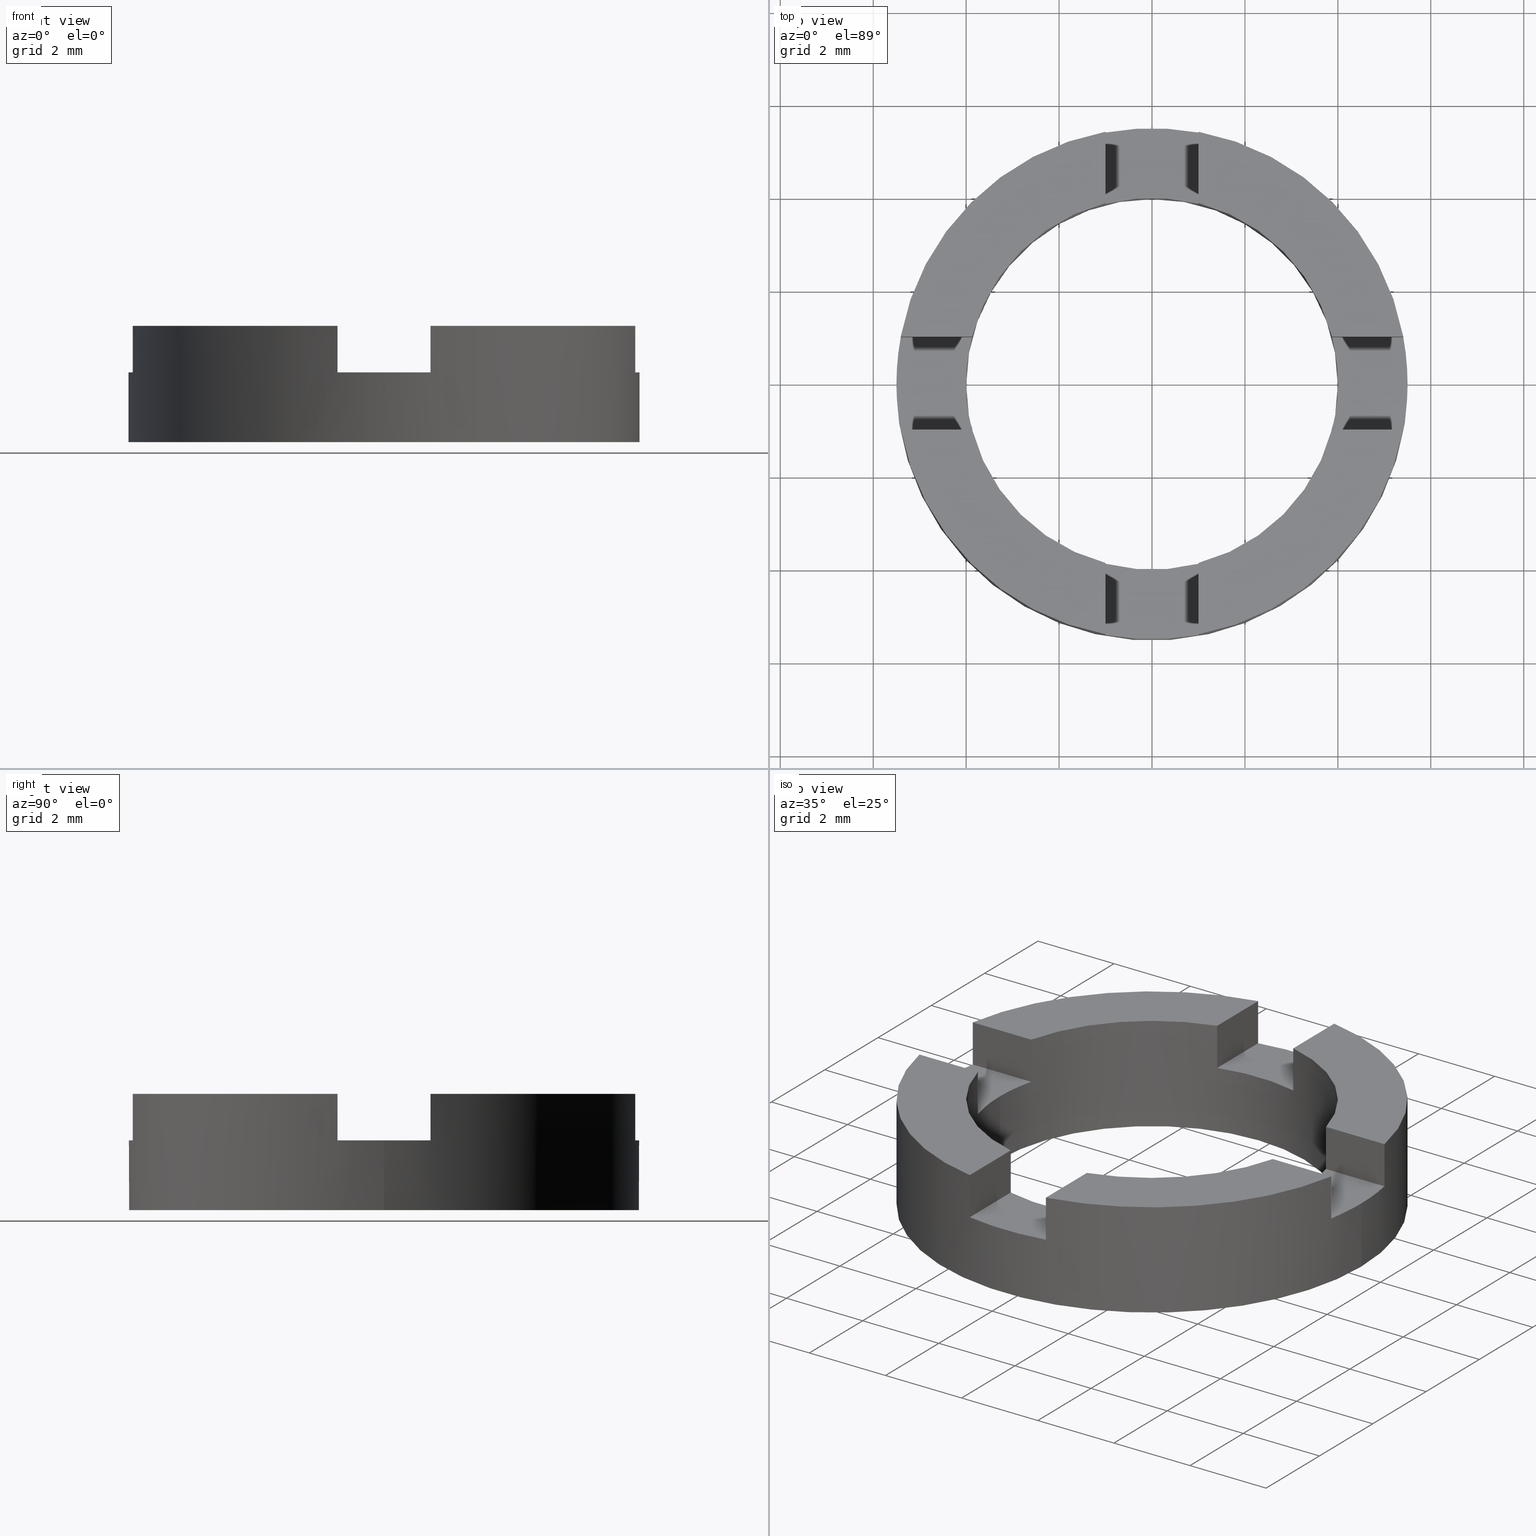
[diagram: canonical four-view strip — front | top / right | iso, engineering-drawing reading convention]
A machine part, canonical four-view strip (front | top / right | iso — engineering-drawing reading convention). The complete STEP part file that produces these views, byte-faithful:
ISO-10303-21;
HEADER;
FILE_DESCRIPTION (( 'STEP AP203' ),
    '1' );
FILE_NAME ('514028.step',
    '2024-12-26T02:30:39',
    ( 'MSI' ),
    ( '' ),
    'SwSTEP 2.0',
    'SolidWorks 2020',
    '' );
FILE_SCHEMA (( 'CONFIG_CONTROL_DESIGN' ));
ENDSEC;

DATA;
#1 = LINE ( 'NONE', #520, #499 ) ;
#2 = ORIENTED_EDGE ( 'NONE', *, *, #85, .F. ) ;
#3 = CARTESIAN_POINT ( 'NONE',  ( -4.000000000000000000, 0.000000000000000000, 2.500000000000000000 ) ) ;
#4 = VECTOR ( 'NONE', #633, 1000.000000000000000 ) ;
#5 = DIRECTION ( 'NONE',  ( 0.000000000000000000, 0.000000000000000000, 1.000000000000000000 ) ) ;
#6 = ORIENTED_EDGE ( 'NONE', *, *, #473, .F. ) ;
#7 = LINE ( 'NONE', #628, #770 ) ;
#8 = ADVANCED_FACE ( 'NONE', ( #301 ), #720, .T. ) ;
#9 = VERTEX_POINT ( 'NONE', #399 ) ;
#10 = VECTOR ( 'NONE', #94, 1000.000000000000000 ) ;
#11 = VERTEX_POINT ( 'NONE', #463 ) ;
#12 = LINE ( 'NONE', #122, #4 ) ;
#13 = EDGE_LOOP ( 'NONE', ( #163, #162 ) ) ;
#14 = ORIENTED_EDGE ( 'NONE', *, *, #474, .T. ) ;
#15 = ORIENTED_EDGE ( 'NONE', *, *, #433, .F. ) ;
#16 = EDGE_CURVE ( 'NONE', #526, #428, #55, .T. ) ;
#17 = ORIENTED_EDGE ( 'NONE', *, *, #614, .T. ) ;
#18 = VECTOR ( 'NONE', #510, 1000.000000000000000 ) ;
#19 = AXIS2_PLACEMENT_3D ( 'NONE', #639, #54, #430 ) ;
#20 = FACE_OUTER_BOUND ( 'NONE', #488, .T. ) ;
#21 = CARTESIAN_POINT ( 'NONE',  ( -1.000000000000000000, -2.365532012695646217E-16, 1.500000000000000000 ) ) ;
#22 = VECTOR ( 'NONE', #309, 1000.000000000000000 ) ;
#23 = LINE ( 'NONE', #536, #556 ) ;
#24 = ORIENTED_EDGE ( 'NONE', *, *, #575, .T. ) ;
#25 = CLOSED_SHELL ( 'NONE', ( #82, #634, #53, #76, #649, #366, #563, #278, #467, #8, #605, #424, #699, #294, #232, #360, #172, #525, #646, #100, #527 ) ) ;
#26 = VERTEX_POINT ( 'NONE', #709 ) ;
#27 = VERTEX_POINT ( 'NONE', #116 ) ;
#28 = ORIENTED_EDGE ( 'NONE', *, *, #610, .F. ) ;
#29 = FACE_OUTER_BOUND ( 'NONE', #161, .T. ) ;
#30 = ORIENTED_EDGE ( 'NONE', *, *, #382, .F. ) ;
#31 = DIRECTION ( 'NONE',  ( 0.000000000000000000, 0.000000000000000000, 1.000000000000000000 ) ) ;
#32 = LINE ( 'NONE', #590, #279 ) ;
#33 = AXIS2_PLACEMENT_3D ( 'NONE', #129, #583, #621 ) ;
#34 = VECTOR ( 'NONE', #396, 1000.000000000000000 ) ;
#35 = VECTOR ( 'NONE', #218, 1000.000000000000000 ) ;
#36 = CARTESIAN_POINT ( 'NONE',  ( 3.272319284228981178E-15, 1.000000000000000888, 1.500000000000000000 ) ) ;
#37 = VECTOR ( 'NONE', #631, 1000.000000000000000 ) ;
#38 = LINE ( 'NONE', #662, #312 ) ;
#39 = CARTESIAN_POINT ( 'NONE',  ( -5.408326913195987018, -0.9999999999999813483, 1.500000000000000000 ) ) ;
#40 = LINE ( 'NONE', #587, #323 ) ;
#41 = CARTESIAN_POINT ( 'NONE',  ( 0.9999999999999991118, 3.872983346207417465, 1.500000000000000000 ) ) ;
#42 = FACE_OUTER_BOUND ( 'NONE', #231, .T. ) ;
#43 = CC_DESIGN_DATE_AND_TIME_ASSIGNMENT ( #475, #608, ( #743 ) ) ;
#44 = EDGE_CURVE ( 'NONE', #50, #234, #285, .T. ) ;
#45 = DIRECTION ( 'NONE',  ( -2.365532012695646217E-16, 1.000000000000000000, 0.000000000000000000 ) ) ;
#46 = VECTOR ( 'NONE', #47, 1000.000000000000000 ) ;
#47 = DIRECTION ( 'NONE',  ( -0.000000000000000000, -0.000000000000000000, -1.000000000000000000 ) ) ;
#48 = EDGE_CURVE ( 'NONE', #531, #481, #549, .T. ) ;
#49 = CARTESIAN_POINT ( 'NONE',  ( 0.000000000000000000, 0.000000000000000000, 0.000000000000000000 ) ) ;
#50 = VERTEX_POINT ( 'NONE', #123 ) ;
#51 = LINE ( 'NONE', #359, #34 ) ;
#52 = LINE ( 'NONE', #423, #283 ) ;
#53 = ADVANCED_FACE ( 'NONE', ( #296 ), #616, .T. ) ;
#54 = DIRECTION ( 'NONE',  ( -0.000000000000000000, 0.000000000000000000, 1.000000000000000000 ) ) ;
#55 = CIRCLE ( 'NONE', #619, 5.500000000000000000 ) ;
#56 = PLANE ( 'NONE',  #33 ) ;
#57 = FACE_OUTER_BOUND ( 'NONE', #567, .T. ) ;
#58 = CYLINDRICAL_SURFACE ( 'NONE', #72, 4.000000000000000000 ) ;
#59 = CARTESIAN_POINT ( 'NONE',  ( 1.000000000000001332, -5.408326913195983465, 1.500000000000000000 ) ) ;
#60 = EDGE_CURVE ( 'NONE', #481, #164, #321, .T. ) ;
#61 = VECTOR ( 'NONE', #665, 1000.000000000000000 ) ;
#62 = EDGE_CURVE ( 'NONE', #688, #230, #570, .T. ) ;
#63 = PLANE ( 'NONE',  #652 ) ;
#64 = CARTESIAN_POINT ( 'NONE',  ( 0.000000000000000000, 0.000000000000000000, 1.500000000000000000 ) ) ;
#65 = MECHANICAL_CONTEXT ( 'NONE', #350, 'mechanical' ) ;
#66 = VECTOR ( 'NONE', #126, 1000.000000000000000 ) ;
#67 = LINE ( 'NONE', #386, #61 ) ;
#68 = CARTESIAN_POINT ( 'NONE',  ( -0.9999999999999991118, -3.872983346207417465, 2.500000000000000000 ) ) ;
#69 = DIRECTION ( 'NONE',  ( 0.000000000000000000, 0.000000000000000000, 1.000000000000000000 ) ) ;
#70 = CARTESIAN_POINT ( 'NONE',  ( -5.500000000000000000, 0.000000000000000000, 2.500000000000000000 ) ) ;
#71 = ORIENTED_EDGE ( 'NONE', *, *, #629, .F. ) ;
#72 = AXIS2_PLACEMENT_3D ( 'NONE', #299, #455, #221 ) ;
#73 = CARTESIAN_POINT ( 'NONE',  ( 5.408326913195980801, -1.000000000000016875, 2.500000000000000000 ) ) ;
#74 = DIRECTION ( 'NONE',  ( 0.000000000000000000, -0.000000000000000000, -1.000000000000000000 ) ) ;
#75 = ORIENTED_EDGE ( 'NONE', *, *, #184, .F. ) ;
#76 = ADVANCED_FACE ( 'NONE', ( #20 ), #317, .T. ) ;
#77 = CARTESIAN_POINT ( 'NONE',  ( 1.000000000000000888, -3.872983346207416577, 2.500000000000000000 ) ) ;
#78 = DIRECTION ( 'NONE',  ( -2.365532012695646217E-16, 1.000000000000000000, 0.000000000000000000 ) ) ;
#79 = DIRECTION ( 'NONE',  ( -0.000000000000000000, -0.000000000000000000, 1.000000000000000000 ) ) ;
#80 = CC_DESIGN_PERSON_AND_ORGANIZATION_ASSIGNMENT ( #223, #275, ( #743 ) ) ;
#81 = AXIS2_PLACEMENT_3D ( 'NONE', #604, #761, #689 ) ;
#82 = ADVANCED_FACE ( 'NONE', ( #574 ), #562, .F. ) ;
#83 = EDGE_CURVE ( 'NONE', #189, #747, #51, .T. ) ;
#84 = AXIS2_PLACEMENT_3D ( 'NONE', #349, #98, #380 ) ;
#85 = EDGE_CURVE ( 'NONE', #273, #174, #290, .T. ) ;
#86 = CARTESIAN_POINT ( 'NONE',  ( 0.000000000000000000, 0.000000000000000000, 0.000000000000000000 ) ) ;
#87 = DIRECTION ( 'NONE',  ( 1.000000000000000000, 0.000000000000000000, 0.000000000000000000 ) ) ;
#88 = DIRECTION ( 'NONE',  ( 0.000000000000000000, 0.000000000000000000, 1.000000000000000000 ) ) ;
#89 = CARTESIAN_POINT ( 'NONE',  ( -1.000000000000000000, -2.365532012695646217E-16, 1.500000000000000000 ) ) ;
#90 = AXIS2_PLACEMENT_3D ( 'NONE', #159, #327, #266 ) ;
#91 = DIRECTION ( 'NONE',  ( 0.000000000000000000, 0.000000000000000000, 1.000000000000000000 ) ) ;
#92 = CARTESIAN_POINT ( 'NONE',  ( 5.500000000000000000, 6.735557395310442023E-16, 2.500000000000000000 ) ) ;
#93 = APPLICATION_PROTOCOL_DEFINITION ( 'international standard', 'config_control_design', 1994, #632 ) ;
#94 = DIRECTION ( 'NONE',  ( -0.000000000000000000, -0.000000000000000000, 1.000000000000000000 ) ) ;
#95 = AXIS2_PLACEMENT_3D ( 'NONE', #49, #679, #394 ) ;
#96 = EDGE_CURVE ( 'NONE', #174, #230, #558, .T. ) ;
#97 = CARTESIAN_POINT ( 'NONE',  ( 0.000000000000000000, 0.000000000000000000, 0.000000000000000000 ) ) ;
#98 = DIRECTION ( 'NONE',  ( -3.272319284228978023E-15, -1.000000000000000000, 0.000000000000000000 ) ) ;
#99 = CARTESIAN_POINT ( 'NONE',  ( -5.408326913195987018, -0.9999999999999813483, 2.500000000000000000 ) ) ;
#100 = ADVANCED_FACE ( 'NONE', ( #57 ), #111, .F. ) ;
#101 = DIRECTION ( 'NONE',  ( 0.000000000000000000, 0.000000000000000000, 1.000000000000000000 ) ) ;
#102 = DIRECTION ( 'NONE',  ( 1.000000000000000000, 0.000000000000000000, -0.000000000000000000 ) ) ;
#103 = APPROVAL_ROLE ( '' ) ;
#104 = DIRECTION ( 'NONE',  ( 1.000000000000000000, 0.000000000000000000, 0.000000000000000000 ) ) ;
#105 = CC_DESIGN_PERSON_AND_ORGANIZATION_ASSIGNMENT ( #216, #209, ( #539 ) ) ;
#106 = EDGE_CURVE ( 'NONE', #170, #667, #545, .T. ) ;
#107 = CARTESIAN_POINT ( 'NONE',  ( 0.000000000000000000, 0.000000000000000000, 2.500000000000000000 ) ) ;
#108 = CARTESIAN_POINT ( 'NONE',  ( 0.000000000000000000, 0.000000000000000000, 1.500000000000000000 ) ) ;
#109 = PLANE ( 'NONE',  #257 ) ;
#110 = CARTESIAN_POINT ( 'NONE',  ( 1.000000000000000888, -3.872983346207416577, 1.500000000000000000 ) ) ;
#111 = PLANE ( 'NONE',  #391 ) ;
#112 = CARTESIAN_POINT ( 'NONE',  ( 0.000000000000000000, 0.000000000000000000, 2.500000000000000000 ) ) ;
#113 = AXIS2_PLACEMENT_3D ( 'NONE', #108, #134, #450 ) ;
#114 = DIRECTION ( 'NONE',  ( 1.000000000000000000, 0.000000000000000000, -0.000000000000000000 ) ) ;
#115 = ORIENTED_EDGE ( 'NONE', *, *, #575, .F. ) ;
#116 = CARTESIAN_POINT ( 'NONE',  ( -5.500000000000000000, 0.000000000000000000, 1.500000000000000000 ) ) ;
#117 = AXIS2_PLACEMENT_3D ( 'NONE', #190, #101, #682 ) ;
#118 = EDGE_CURVE ( 'NONE', #747, #11, #561, .T. ) ;
#119 = EDGE_CURVE ( 'NONE', #690, #307, #40, .T. ) ;
#120 = EDGE_CURVE ( 'NONE', #183, #769, #576, .T. ) ;
#121 = AXIS2_PLACEMENT_3D ( 'NONE', #310, #74, #388 ) ;
#122 = CARTESIAN_POINT ( 'NONE',  ( 1.000000000000000000, 2.365532012695646217E-16, 1.500000000000000000 ) ) ;
#123 = CARTESIAN_POINT ( 'NONE',  ( 5.500000000000000000, 6.735557395310442023E-16, 1.500000000000000000 ) ) ;
#124 = CARTESIAN_POINT ( 'NONE',  ( -0.9999999999999986677, -5.408326913195983465, 1.500000000000000000 ) ) ;
#125 = CARTESIAN_POINT ( 'NONE',  ( 0.000000000000000000, 0.000000000000000000, 1.500000000000000000 ) ) ;
#126 = DIRECTION ( 'NONE',  ( -0.000000000000000000, -0.000000000000000000, 1.000000000000000000 ) ) ;
#127 = VERTEX_POINT ( 'NONE', #201 ) ;
#128 = CARTESIAN_POINT ( 'NONE',  ( 0.000000000000000000, 0.000000000000000000, 2.500000000000000000 ) ) ;
#129 = CARTESIAN_POINT ( 'NONE',  ( -3.272319284228975262E-15, -0.9999999999999991118, 1.500000000000000000 ) ) ;
#130 = APPROVAL_STATUS ( 'not_yet_approved' ) ;
#131 = EDGE_CURVE ( 'NONE', #435, #234, #32, .T. ) ;
#132 = DIRECTION ( 'NONE',  ( -0.000000000000000000, -0.000000000000000000, 1.000000000000000000 ) ) ;
#133 = CARTESIAN_POINT ( 'NONE',  ( -3.272319284228975262E-15, -0.9999999999999991118, 1.500000000000000000 ) ) ;
#134 = DIRECTION ( 'NONE',  ( 0.000000000000000000, -0.000000000000000000, -1.000000000000000000 ) ) ;
#135 = CARTESIAN_POINT ( 'NONE',  ( 3.872983346207413469, -1.000000000000011768, 1.500000000000000000 ) ) ;
#136 = CARTESIAN_POINT ( 'NONE',  ( 0.000000000000000000, 0.000000000000000000, 2.500000000000000000 ) ) ;
#137 = CC_DESIGN_PERSON_AND_ORGANIZATION_ASSIGNMENT ( #721, #151, ( #722 ) ) ;
#138 = CARTESIAN_POINT ( 'NONE',  ( 0.000000000000000000, 0.000000000000000000, 2.500000000000000000 ) ) ;
#139 = CARTESIAN_POINT ( 'NONE',  ( 5.408326913195987018, 0.9999999999999831246, 1.500000000000000000 ) ) ;
#140 = CARTESIAN_POINT ( 'NONE',  ( 5.500000000000000000, 6.735557395310442023E-16, 0.000000000000000000 ) ) ;
#141 = PLANE ( 'NONE',  #169 ) ;
#142 = CARTESIAN_POINT ( 'NONE',  ( -1.000000000000000888, 3.872983346207416577, 1.500000000000000000 ) ) ;
#143 = CARTESIAN_POINT ( 'NONE',  ( 0.000000000000000000, 0.000000000000000000, 1.500000000000000000 ) ) ;
#144 = ORIENTED_EDGE ( 'NONE', *, *, #671, .F. ) ;
#145 = EDGE_CURVE ( 'NONE', #428, #412, #571, .T. ) ;
#146 = ORIENTED_EDGE ( 'NONE', *, *, #85, .T. ) ;
#147 = PLANE ( 'NONE',  #158 ) ;
#148 = EDGE_CURVE ( 'NONE', #435, #165, #23, .T. ) ;
#149 = ORIENTED_EDGE ( 'NONE', *, *, #674, .F. ) ;
#150 = CARTESIAN_POINT ( 'NONE',  ( 1.000000000000000000, 2.365532012695646217E-16, 1.500000000000000000 ) ) ;
#151 = PERSON_AND_ORGANIZATION_ROLE ( 'design_owner' ) ;
#152 = ORIENTED_EDGE ( 'NONE', *, *, #584, .T. ) ;
#153 = ORIENTED_EDGE ( 'NONE', *, *, #555, .T. ) ;
#154 = ORIENTED_EDGE ( 'NONE', *, *, #120, .T. ) ;
#155 = ORIENTED_EDGE ( 'NONE', *, *, #397, .F. ) ;
#156 = ORIENTED_EDGE ( 'NONE', *, *, #243, .F. ) ;
#157 = EDGE_LOOP ( 'NONE', ( #75, #149, #14, #513 ) ) ;
#158 = AXIS2_PLACEMENT_3D ( 'NONE', #609, #453, #606 ) ;
#159 = CARTESIAN_POINT ( 'NONE',  ( 0.000000000000000000, 0.000000000000000000, 1.500000000000000000 ) ) ;
#160 = EDGE_CURVE ( 'NONE', #174, #164, #52, .T. ) ;
#161 = EDGE_LOOP ( 'NONE', ( #612, #492, #484, #507 ) ) ;
#162 = ORIENTED_EDGE ( 'NONE', *, *, #429, .F. ) ;
#163 = ORIENTED_EDGE ( 'NONE', *, *, #651, .F. ) ;
#164 = VERTEX_POINT ( 'NONE', #345 ) ;
#165 = VERTEX_POINT ( 'NONE', #393 ) ;
#166 = ORIENTED_EDGE ( 'NONE', *, *, #731, .F. ) ;
#167 = APPROVAL ( #766, 'δָ��' ) ;
#168 = ORIENTED_EDGE ( 'NONE', *, *, #48, .T. ) ;
#169 = AXIS2_PLACEMENT_3D ( 'NONE', #586, #733, #745 ) ;
#170 = VERTEX_POINT ( 'NONE', #208 ) ;
#171 = ORIENTED_EDGE ( 'NONE', *, *, #637, .T. ) ;
#172 = ADVANCED_FACE ( 'NONE', ( #29 ), #272, .F. ) ;
#173 = ORIENTED_EDGE ( 'NONE', *, *, #629, .T. ) ;
#174 = VERTEX_POINT ( 'NONE', #503 ) ;
#175 = LINE ( 'NONE', #124, #182 ) ;
#176 = ORIENTED_EDGE ( 'NONE', *, *, #16, .F. ) ;
#177 = VECTOR ( 'NONE', #316, 1000.000000000000000 ) ;
#178 = ORIENTED_EDGE ( 'NONE', *, *, #160, .T. ) ;
#179 = CYLINDRICAL_SURFACE ( 'NONE', #504, 5.500000000000000000 ) ;
#180 = EDGE_LOOP ( 'NONE', ( #712, #409, #683, #156, #6, #707, #532, #444, #260, #251, #505, #155 ) ) ;
#181 = CARTESIAN_POINT ( 'NONE',  ( -0.9999999999999991118, -3.872983346207417465, 1.500000000000000000 ) ) ;
#182 = VECTOR ( 'NONE', #348, 1000.000000000000000 ) ;
#183 = VERTEX_POINT ( 'NONE', #384 ) ;
#184 = EDGE_CURVE ( 'NONE', #544, #230, #311, .T. ) ;
#185 = CIRCLE ( 'NONE', #19, 5.500000000000000000 ) ;
#186 = DIRECTION ( 'NONE',  ( -0.000000000000000000, -0.000000000000000000, 1.000000000000000000 ) ) ;
#187 = ORIENTED_EDGE ( 'NONE', *, *, #377, .T. ) ;
#188 = VECTOR ( 'NONE', #338, 1000.000000000000000 ) ;
#189 = VERTEX_POINT ( 'NONE', #39 ) ;
#190 = CARTESIAN_POINT ( 'NONE',  ( 0.000000000000000000, 0.000000000000000000, 2.500000000000000000 ) ) ;
#191 = DIRECTION ( 'NONE',  ( 1.000000000000000000, 0.000000000000000000, 0.000000000000000000 ) ) ;
#192 = DIRECTION ( 'NONE',  ( -0.000000000000000000, -0.000000000000000000, 1.000000000000000000 ) ) ;
#193 = CC_DESIGN_APPROVAL ( #626, ( #364 ) ) ;
#194 = CIRCLE ( 'NONE', #482, 4.000000000000000000 ) ;
#195 = EDGE_CURVE ( 'NONE', #531, #560, #295, .T. ) ;
#196 = DIRECTION ( 'NONE',  ( 0.000000000000000000, 0.000000000000000000, 1.000000000000000000 ) ) ;
#197 = EDGE_CURVE ( 'NONE', #412, #307, #38, .T. ) ;
#198 = LINE ( 'NONE', #395, #436 ) ;
#199 = CIRCLE ( 'NONE', #530, 4.000000000000000000 ) ;
#200 = CARTESIAN_POINT ( 'NONE',  ( 0.000000000000000000, 0.000000000000000000, 2.500000000000000000 ) ) ;
#201 = CARTESIAN_POINT ( 'NONE',  ( -4.000000000000000000, 0.000000000000000000, 1.500000000000000000 ) ) ;
#202 = PERSON_AND_ORGANIZATION_ROLE ( 'design_supplier' ) ;
#203 = VECTOR ( 'NONE', #692, 1000.000000000000000 ) ;
#204 = APPROVAL_PERSON_ORGANIZATION ( #719, #626, #537 ) ;
#205 = CARTESIAN_POINT ( 'NONE',  ( 0.000000000000000000, 0.000000000000000000, 1.500000000000000000 ) ) ;
#206 = LOCAL_TIME ( 10, 30, 39.00000000000000000, #723 ) ;
#207 = FACE_OUTER_BOUND ( 'NONE', #543, .T. ) ;
#208 = CARTESIAN_POINT ( 'NONE',  ( 5.408326913195980801, -1.000000000000016875, 1.500000000000000000 ) ) ;
#209 = PERSON_AND_ORGANIZATION_ROLE ( 'creator' ) ;
#210 = LINE ( 'NONE', #500, #464 ) ;
#211 = AXIS2_PLACEMENT_3D ( 'NONE', #375, #630, #45 ) ;
#212 = EDGE_CURVE ( 'NONE', #526, #407, #306, .T. ) ;
#213 = CIRCLE ( 'NONE', #318, 5.500000000000000000 ) ;
#214 = PLANE ( 'NONE',  #602 ) ;
#215 = DATE_AND_TIME ( #219, #486 ) ;
#216 = PERSON_AND_ORGANIZATION ( #269, #718 ) ;
#217 = DIRECTION ( 'NONE',  ( -1.000000000000000000, 0.000000000000000000, 0.000000000000000000 ) ) ;
#218 = DIRECTION ( 'NONE',  ( -0.000000000000000000, -0.000000000000000000, 1.000000000000000000 ) ) ;
#219 = CALENDAR_DATE ( 2024, 26, 12 ) ;
#220 = DIRECTION ( 'NONE',  ( 1.000000000000000000, 0.000000000000000000, 0.000000000000000000 ) ) ;
#221 = DIRECTION ( 'NONE',  ( -1.000000000000000000, 0.000000000000000000, 0.000000000000000000 ) ) ;
#222 = CARTESIAN_POINT ( 'NONE',  ( 4.000000000000000000, 4.898587196589412829E-16, 0.000000000000000000 ) ) ;
#223 = PERSON_AND_ORGANIZATION ( #269, #718 ) ;
#224 = CARTESIAN_POINT ( 'NONE',  ( -1.000000000000001332, 5.408326913195983465, 1.500000000000000000 ) ) ;
#225 = CARTESIAN_POINT ( 'NONE',  ( -5.408326913195980801, 1.000000000000018652, 1.500000000000000000 ) ) ;
#226 = DIRECTION ( 'NONE',  ( 1.000000000000000000, 2.365532012695646217E-16, 0.000000000000000000 ) ) ;
#227 = APPROVAL_STATUS ( 'not_yet_approved' ) ;
#228 = DATE_AND_TIME ( #726, #206 ) ;
#229 = DATE_AND_TIME ( #750, #242 ) ;
#230 = VERTEX_POINT ( 'NONE', #756 ) ;
#231 = EDGE_LOOP ( 'NONE', ( #480, #298, #154, #173, #17, #670 ) ) ;
#232 = ADVANCED_FACE ( 'NONE', ( #42 ), #740, .T. ) ;
#233 = ORIENTED_EDGE ( 'NONE', *, *, #119, .F. ) ;
#234 = VERTEX_POINT ( 'NONE', #139 ) ;
#235 = SHAPE_DEFINITION_REPRESENTATION ( #457, #597 ) ;
#236 = ORIENTED_EDGE ( 'NONE', *, *, #356, .F. ) ;
#237 = ORIENTED_EDGE ( 'NONE', *, *, #540, .T. ) ;
#238 = ORIENTED_EDGE ( 'NONE', *, *, #212, .F. ) ;
#239 = ORIENTED_EDGE ( 'NONE', *, *, #332, .T. ) ;
#240 = LOCAL_TIME ( 10, 30, 39.00000000000000000, #477 ) ;
#241 = ORIENTED_EDGE ( 'NONE', *, *, #96, .F. ) ;
#242 = LOCAL_TIME ( 10, 30, 39.00000000000000000, #736 ) ;
#243 = EDGE_CURVE ( 'NONE', #27, #780, #568, .T. ) ;
#244 = EDGE_LOOP ( 'NONE', ( #552, #233, #764, #660 ) ) ;
#245 = APPROVAL_PERSON_ORGANIZATION ( #748, #167, #103 ) ;
#246 = ORIENTED_EDGE ( 'NONE', *, *, #131, .T. ) ;
#247 = CIRCLE ( 'NONE', #466, 4.000000000000000000 ) ;
#248 = ORIENTED_EDGE ( 'NONE', *, *, #331, .F. ) ;
#249 = CIRCLE ( 'NONE', #365, 5.500000000000000000 ) ;
#250 = VERTEX_POINT ( 'NONE', #640 ) ;
#251 = ORIENTED_EDGE ( 'NONE', *, *, #195, .T. ) ;
#252 = CIRCLE ( 'NONE', #565, 5.500000000000000000 ) ;
#253 = ORIENTED_EDGE ( 'NONE', *, *, #687, .T. ) ;
#254 = CIRCLE ( 'NONE', #335, 5.500000000000000000 ) ;
#255 = ORIENTED_EDGE ( 'NONE', *, *, #416, .F. ) ;
#256 = CIRCLE ( 'NONE', #725, 5.500000000000000000 ) ;
#257 = AXIS2_PLACEMENT_3D ( 'NONE', #143, #313, #357 ) ;
#258 = ORIENTED_EDGE ( 'NONE', *, *, #483, .T. ) ;
#259 = FACE_OUTER_BOUND ( 'NONE', #319, .T. ) ;
#260 = ORIENTED_EDGE ( 'NONE', *, *, #48, .F. ) ;
#261 = VECTOR ( 'NONE', #658, 1000.000000000000000 ) ;
#262 = EDGE_LOOP ( 'NONE', ( #241, #178, #495, #691 ) ) ;
#263 = FACE_OUTER_BOUND ( 'NONE', #157, .T. ) ;
#264 = CARTESIAN_POINT ( 'NONE',  ( -3.872983346207420574, -0.9999999999999865663, 1.500000000000000000 ) ) ;
#265 = ORIENTED_EDGE ( 'NONE', *, *, #650, .T. ) ;
#266 = DIRECTION ( 'NONE',  ( 1.000000000000000000, 0.000000000000000000, 0.000000000000000000 ) ) ;
#267 = ORIENTED_EDGE ( 'NONE', *, *, #627, .T. ) ;
#268 = ORIENTED_EDGE ( 'NONE', *, *, #473, .T. ) ;
#269 = PERSON ( 'δָ��', 'δָ��', 'δָ��', ('δָ��'), ('δָ��'), ('δָ��') ) ;
#270 = DIRECTION ( 'NONE',  ( 1.000000000000000000, 0.000000000000000000, 0.000000000000000000 ) ) ;
#271 = AXIS2_PLACEMENT_3D ( 'NONE', #611, #5, #607 ) ;
#272 = PLANE ( 'NONE',  #84 ) ;
#273 = VERTEX_POINT ( 'NONE', #142 ) ;
#274 = CARTESIAN_POINT ( 'NONE',  ( -3.272319284228975262E-15, -0.9999999999999991118, 2.500000000000000000 ) ) ;
#275 = PERSON_AND_ORGANIZATION_ROLE ( 'classification_officer' ) ;
#276 = EDGE_LOOP ( 'NONE', ( #115, #752, #253, #168 ) ) ;
#277 = CC_DESIGN_DATE_AND_TIME_ASSIGNMENT ( #229, #542, ( #364 ) ) ;
#278 = ADVANCED_FACE ( 'NONE', ( #314 ), #58, .F. ) ;
#279 = VECTOR ( 'NONE', #529, 1000.000000000000000 ) ;
#280 = ORIENTED_EDGE ( 'NONE', *, *, #671, .T. ) ;
#281 = EDGE_CURVE ( 'NONE', #50, #519, #580, .T. ) ;
#282 = AXIS2_PLACEMENT_3D ( 'NONE', #125, #656, #783 ) ;
#283 = VECTOR ( 'NONE', #515, 1000.000000000000000 ) ;
#284 = ORIENTED_EDGE ( 'NONE', *, *, #555, .F. ) ;
#285 = CIRCLE ( 'NONE', #90, 5.500000000000000000 ) ;
#286 = ORIENTED_EDGE ( 'NONE', *, *, #336, .F. ) ;
#287 = DIRECTION ( 'NONE',  ( -0.000000000000000000, -0.000000000000000000, -1.000000000000000000 ) ) ;
#288 = DIRECTION ( 'NONE',  ( -0.000000000000000000, -0.000000000000000000, 1.000000000000000000 ) ) ;
#289 = DIRECTION ( 'NONE',  ( 0.000000000000000000, 0.000000000000000000, 1.000000000000000000 ) ) ;
#290 = LINE ( 'NONE', #462, #551 ) ;
#291 = ORIENTED_EDGE ( 'NONE', *, *, #397, .T. ) ;
#292 = VECTOR ( 'NONE', #635, 1000.000000000000000 ) ;
#293 = DIRECTION ( 'NONE',  ( 0.000000000000000000, -0.000000000000000000, -1.000000000000000000 ) ) ;
#294 = ADVANCED_FACE ( 'NONE', ( #324 ), #56, .F. ) ;
#295 = LINE ( 'NONE', #678, #37 ) ;
#296 = FACE_OUTER_BOUND ( 'NONE', #262, .T. ) ;
#297 = CARTESIAN_POINT ( 'NONE',  ( 0.9999999999999986677, 5.408326913195983465, 1.500000000000000000 ) ) ;
#298 = ORIENTED_EDGE ( 'NONE', *, *, #356, .T. ) ;
#299 = CARTESIAN_POINT ( 'NONE',  ( 0.000000000000000000, 0.000000000000000000, 2.500000000000000000 ) ) ;
#300 = DIRECTION ( 'NONE',  ( 0.000000000000000000, 0.000000000000000000, 1.000000000000000000 ) ) ;
#301 = FACE_OUTER_BOUND ( 'NONE', #522, .T. ) ;
#302 = AXIS2_PLACEMENT_3D ( 'NONE', #703, #548, #776 ) ;
#303 = EDGE_CURVE ( 'NONE', #273, #569, #581, .T. ) ;
#304 = EDGE_LOOP ( 'NONE', ( #413, #268, #493, #152, #330, #777 ) ) ;
#305 = CARTESIAN_POINT ( 'NONE',  ( -4.000000000000000000, 0.000000000000000000, 0.000000000000000000 ) ) ;
#306 = LINE ( 'NONE', #89, #564 ) ;
#307 = VERTEX_POINT ( 'NONE', #77 ) ;
#308 = CARTESIAN_POINT ( 'NONE',  ( 0.9999999999999991118, 3.872983346207417465, 2.500000000000000000 ) ) ;
#309 = DIRECTION ( 'NONE',  ( 1.000000000000000000, -3.272319284228978023E-15, 0.000000000000000000 ) ) ;
#310 = CARTESIAN_POINT ( 'NONE',  ( 0.000000000000000000, 0.000000000000000000, 1.500000000000000000 ) ) ;
#311 = LINE ( 'NONE', #598, #292 ) ;
#312 = VECTOR ( 'NONE', #352, 1000.000000000000000 ) ;
#313 = DIRECTION ( 'NONE',  ( -0.000000000000000000, 0.000000000000000000, 1.000000000000000000 ) ) ;
#314 = FACE_OUTER_BOUND ( 'NONE', #341, .T. ) ;
#315 = EDGE_LOOP ( 'NONE', ( #267, #153 ) ) ;
#316 = DIRECTION ( 'NONE',  ( -0.000000000000000000, -0.000000000000000000, 1.000000000000000000 ) ) ;
#317 = PLANE ( 'NONE',  #400 ) ;
#318 = AXIS2_PLACEMENT_3D ( 'NONE', #421, #661, #344 ) ;
#319 = EDGE_LOOP ( 'NONE', ( #238, #760, #534, #258 ) ) ;
#320 = EDGE_LOOP ( 'NONE', ( #422, #479, #71, #401 ) ) ;
#321 = LINE ( 'NONE', #370, #566 ) ;
#322 = DIRECTION ( 'NONE',  ( 1.000000000000000000, 2.365532012695646217E-16, 0.000000000000000000 ) ) ;
#323 = VECTOR ( 'NONE', #192, 1000.000000000000000 ) ;
#324 = FACE_OUTER_BOUND ( 'NONE', #320, .T. ) ;
#325 = LINE ( 'NONE', #368, #328 ) ;
#326 = CIRCLE ( 'NONE', #362, 4.000000000000000000 ) ;
#327 = DIRECTION ( 'NONE',  ( -0.000000000000000000, 0.000000000000000000, 1.000000000000000000 ) ) ;
#328 = VECTOR ( 'NONE', #496, 1000.000000000000000 ) ;
#329 = AXIS2_PLACEMENT_3D ( 'NONE', #64, #625, #601 ) ;
#330 = ORIENTED_EDGE ( 'NONE', *, *, #731, .T. ) ;
#331 = EDGE_CURVE ( 'NONE', #407, #476, #578, .T. ) ;
#332 = EDGE_CURVE ( 'NONE', #165, #250, #67, .T. ) ;
#333 = CARTESIAN_POINT ( 'NONE',  ( 0.000000000000000000, 0.000000000000000000, 1.500000000000000000 ) ) ;
#334 = CARTESIAN_POINT ( 'NONE',  ( 0.000000000000000000, 0.000000000000000000, 1.500000000000000000 ) ) ;
#335 = AXIS2_PLACEMENT_3D ( 'NONE', #136, #638, #87 ) ;
#336 = EDGE_CURVE ( 'NONE', #183, #773, #325, .T. ) ;
#337 = CARTESIAN_POINT ( 'NONE',  ( 0.000000000000000000, 0.000000000000000000, 0.000000000000000000 ) ) ;
#338 = DIRECTION ( 'NONE',  ( -2.365532012695646217E-16, 1.000000000000000000, 0.000000000000000000 ) ) ;
#339 = CARTESIAN_POINT ( 'NONE',  ( 5.408326913195980801, -1.000000000000016875, 1.500000000000000000 ) ) ;
#340 = DIRECTION ( 'NONE',  ( -3.272319284228978023E-15, -1.000000000000000000, 0.000000000000000000 ) ) ;
#341 = EDGE_LOOP ( 'NONE', ( #286, #236, #547, #417, #30, #758, #146, #686, #404, #15, #280, #284 ) ) ;
#342 = AXIS2_PLACEMENT_3D ( 'NONE', #36, #340, #751 ) ;
#343 = CARTESIAN_POINT ( 'NONE',  ( -3.872983346207413025, 1.000000000000013545, 1.500000000000000000 ) ) ;
#344 = DIRECTION ( 'NONE',  ( 1.000000000000000000, 0.000000000000000000, 0.000000000000000000 ) ) ;
#345 = CARTESIAN_POINT ( 'NONE',  ( -1.000000000000001332, 5.408326913195983465, 2.500000000000000000 ) ) ;
#346 = APPLICATION_PROTOCOL_DEFINITION ( 'international standard', 'config_control_design', 1994, #350 ) ;
#347 = PLANE ( 'NONE',  #615 ) ;
#348 = DIRECTION ( 'NONE',  ( -0.000000000000000000, -0.000000000000000000, 1.000000000000000000 ) ) ;
#349 = CARTESIAN_POINT ( 'NONE',  ( -3.272319284228975262E-15, -0.9999999999999991118, 1.500000000000000000 ) ) ;
#350 = APPLICATION_CONTEXT ( 'configuration controlled 3d designs of mechanical parts and assemblies' ) ;
#351 = DIRECTION ( 'NONE',  ( 1.000000000000000000, -3.272319284228978023E-15, 0.000000000000000000 ) ) ;
#352 = DIRECTION ( 'NONE',  ( -2.365532012695646217E-16, 1.000000000000000000, 0.000000000000000000 ) ) ;
#353 = DIRECTION ( 'NONE',  ( 1.000000000000000000, 0.000000000000000000, 0.000000000000000000 ) ) ;
#354 =( NAMED_UNIT ( * ) PLANE_ANGLE_UNIT ( ) SI_UNIT ( $, .RADIAN. ) );
#355 = CC_DESIGN_APPROVAL ( #389, ( #539 ) ) ;
#356 = EDGE_CURVE ( 'NONE', #435, #183, #326, .T. ) ;
#357 = DIRECTION ( 'NONE',  ( 1.000000000000000000, 0.000000000000000000, 0.000000000000000000 ) ) ;
#358 = CARTESIAN_POINT ( 'NONE',  ( -3.872983346207420574, -0.9999999999999865663, 1.500000000000000000 ) ) ;
#359 = CARTESIAN_POINT ( 'NONE',  ( -5.408326913195987018, -0.9999999999999813483, 1.500000000000000000 ) ) ;
#360 = ADVANCED_FACE ( 'NONE', ( #263 ), #445, .T. ) ;
#361 = DIRECTION ( 'NONE',  ( -2.365532012695646217E-16, 1.000000000000000000, 0.000000000000000000 ) ) ;
#362 = AXIS2_PLACEMENT_3D ( 'NONE', #730, #654, #595 ) ;
#363 = EDGE_CURVE ( 'NONE', #9, #667, #509, .T. ) ;
#364 = PRODUCT_DEFINITION ( 'δ֪', '', #539, #478 ) ;
#365 = AXIS2_PLACEMENT_3D ( 'NONE', #138, #379, #620 ) ;
#366 = ADVANCED_FACE ( 'NONE', ( #528 ), #372, .T. ) ;
#367 = AXIS2_PLACEMENT_3D ( 'NONE', #21, #322, #361 ) ;
#368 = CARTESIAN_POINT ( 'NONE',  ( 4.000000000000000000, 4.898587196589412829E-16, 2.500000000000000000 ) ) ;
#369 = DIRECTION ( 'NONE',  ( -0.000000000000000000, 0.000000000000000000, 1.000000000000000000 ) ) ;
#370 = CARTESIAN_POINT ( 'NONE',  ( -1.000000000000001332, 5.408326913195983465, 1.500000000000000000 ) ) ;
#371 = ORIENTED_EDGE ( 'NONE', *, *, #331, .T. ) ;
#372 = PLANE ( 'NONE',  #117 ) ;
#373 =( GEOMETRIC_REPRESENTATION_CONTEXT ( 3 ) GLOBAL_UNCERTAINTY_ASSIGNED_CONTEXT ( ( #779 ) ) GLOBAL_UNIT_ASSIGNED_CONTEXT ( ( #516, #354, #591 ) ) REPRESENTATION_CONTEXT ( 'NONE', 'WORKASPACE' ) );
#374 = EDGE_CURVE ( 'NONE', #428, #690, #12, .T. ) ;
#375 = CARTESIAN_POINT ( 'NONE',  ( -1.000000000000000000, -2.365532012695646217E-16, 1.500000000000000000 ) ) ;
#376 = CARTESIAN_POINT ( 'NONE',  ( 1.000000000000001332, -5.408326913195983465, 1.500000000000000000 ) ) ;
#377 = EDGE_CURVE ( 'NONE', #684, #11, #523, .T. ) ;
#378 = DIRECTION ( 'NONE',  ( -0.000000000000000000, 0.000000000000000000, 1.000000000000000000 ) ) ;
#379 = DIRECTION ( 'NONE',  ( 0.000000000000000000, 0.000000000000000000, 1.000000000000000000 ) ) ;
#380 = DIRECTION ( 'NONE',  ( 1.000000000000000000, -3.272319284228978023E-15, 0.000000000000000000 ) ) ;
#381 = CARTESIAN_POINT ( 'NONE',  ( -0.9999999999999991118, -3.872983346207417465, 1.500000000000000000 ) ) ;
#382 = EDGE_CURVE ( 'NONE', #569, #559, #778, .T. ) ;
#383 = DIRECTION ( 'NONE',  ( -0.000000000000000000, 0.000000000000000000, 1.000000000000000000 ) ) ;
#384 = CARTESIAN_POINT ( 'NONE',  ( 4.000000000000000000, 4.898587196589412829E-16, 1.500000000000000000 ) ) ;
#385 = SECURITY_CLASSIFICATION_LEVEL ( 'unclassified' ) ;
#386 = CARTESIAN_POINT ( 'NONE',  ( 3.272319284228981178E-15, 1.000000000000000888, 2.500000000000000000 ) ) ;
#387 = CARTESIAN_POINT ( 'NONE',  ( 0.000000000000000000, 0.000000000000000000, 0.000000000000000000 ) ) ;
#388 = DIRECTION ( 'NONE',  ( 1.000000000000000000, 5.329070518200751394E-15, 0.000000000000000000 ) ) ;
#389 = APPROVAL ( #130, 'δָ��' ) ;
#390 = CARTESIAN_POINT ( 'NONE',  ( 0.000000000000000000, 0.000000000000000000, 1.500000000000000000 ) ) ;
#391 = AXIS2_PLACEMENT_3D ( 'NONE', #150, #226, #432 ) ;
#392 = DIRECTION ( 'NONE',  ( 1.000000000000000000, -3.272319284228978023E-15, 0.000000000000000000 ) ) ;
#393 = CARTESIAN_POINT ( 'NONE',  ( 3.872983346207420130, 0.9999999999999883427, 2.500000000000000000 ) ) ;
#394 = DIRECTION ( 'NONE',  ( 1.000000000000000000, 0.000000000000000000, 0.000000000000000000 ) ) ;
#395 = CARTESIAN_POINT ( 'NONE',  ( 1.000000000000000000, 2.365532012695646217E-16, 1.500000000000000000 ) ) ;
#396 = DIRECTION ( 'NONE',  ( -0.000000000000000000, -0.000000000000000000, 1.000000000000000000 ) ) ;
#397 = EDGE_CURVE ( 'NONE', #234, #250, #1, .T. ) ;
#398 = AXIS2_PLACEMENT_3D ( 'NONE', #333, #293, #411 ) ;
#399 = CARTESIAN_POINT ( 'NONE',  ( 3.872983346207413469, -1.000000000000011768, 2.500000000000000000 ) ) ;
#400 = AXIS2_PLACEMENT_3D ( 'NONE', #693, #643, #114 ) ;
#401 = ORIENTED_EDGE ( 'NONE', *, *, #610, .T. ) ;
#402 = ORIENTED_EDGE ( 'NONE', *, *, #724, .T. ) ;
#403 = ORIENTED_EDGE ( 'NONE', *, *, #573, .F. ) ;
#404 = ORIENTED_EDGE ( 'NONE', *, *, #62, .F. ) ;
#405 = ORIENTED_EDGE ( 'NONE', *, *, #160, .F. ) ;
#406 = AXIS2_PLACEMENT_3D ( 'NONE', #728, #31, #490 ) ;
#407 = VERTEX_POINT ( 'NONE', #381 ) ;
#408 = ORIENTED_EDGE ( 'NONE', *, *, #382, .T. ) ;
#409 = ORIENTED_EDGE ( 'NONE', *, *, #281, .T. ) ;
#410 = ORIENTED_EDGE ( 'NONE', *, *, #627, .F. ) ;
#411 = DIRECTION ( 'NONE',  ( 1.000000000000000000, 0.000000000000000000, 0.000000000000000000 ) ) ;
#412 = VERTEX_POINT ( 'NONE', #418 ) ;
#413 = ORIENTED_EDGE ( 'NONE', *, *, #474, .F. ) ;
#414 = CC_DESIGN_PERSON_AND_ORGANIZATION_ASSIGNMENT ( #469, #603, ( #364 ) ) ;
#415 = ORIENTED_EDGE ( 'NONE', *, *, #212, .T. ) ;
#416 = EDGE_CURVE ( 'NONE', #412, #667, #256, .T. ) ;
#417 = ORIENTED_EDGE ( 'NONE', *, *, #573, .T. ) ;
#418 = CARTESIAN_POINT ( 'NONE',  ( 1.000000000000001332, -5.408326913195983465, 2.500000000000000000 ) ) ;
#419 = ORIENTED_EDGE ( 'NONE', *, *, #724, .F. ) ;
#420 = ORIENTED_EDGE ( 'NONE', *, *, #732, .T. ) ;
#421 = CARTESIAN_POINT ( 'NONE',  ( 0.000000000000000000, 0.000000000000000000, 0.000000000000000000 ) ) ;
#422 = ORIENTED_EDGE ( 'NONE', *, *, #363, .T. ) ;
#423 = CARTESIAN_POINT ( 'NONE',  ( -1.000000000000000000, -2.365532012695646217E-16, 2.500000000000000000 ) ) ;
#424 = ADVANCED_FACE ( 'NONE', ( #259 ), #214, .T. ) ;
#425 = ORIENTED_EDGE ( 'NONE', *, *, #118, .F. ) ;
#426 = CARTESIAN_POINT ( 'NONE',  ( 3.872983346207420130, 0.9999999999999883427, 1.500000000000000000 ) ) ;
#427 = ORIENTED_EDGE ( 'NONE', *, *, #195, .F. ) ;
#428 = VERTEX_POINT ( 'NONE', #59 ) ;
#429 = EDGE_CURVE ( 'NONE', #519, #780, #521, .T. ) ;
#430 = DIRECTION ( 'NONE',  ( 1.000000000000000000, 0.000000000000000000, 0.000000000000000000 ) ) ;
#431 = ORIENTED_EDGE ( 'NONE', *, *, #119, .T. ) ;
#432 = DIRECTION ( 'NONE',  ( -2.365532012695646217E-16, 1.000000000000000000, 0.000000000000000000 ) ) ;
#433 = EDGE_CURVE ( 'NONE', #127, #688, #512, .T. ) ;
#434 = FACE_OUTER_BOUND ( 'NONE', #442, .T. ) ;
#435 = VERTEX_POINT ( 'NONE', #426 ) ;
#436 = VECTOR ( 'NONE', #774, 1000.000000000000000 ) ;
#437 = ORIENTED_EDGE ( 'NONE', *, *, #659, .T. ) ;
#438 = VECTOR ( 'NONE', #600, 1000.000000000000000 ) ;
#439 = ORIENTED_EDGE ( 'NONE', *, *, #650, .F. ) ;
#440 = PLANE ( 'NONE',  #211 ) ;
#441 = VECTOR ( 'NONE', #392, 1000.000000000000000 ) ;
#442 = EDGE_LOOP ( 'NONE', ( #405, #2, #24, #695 ) ) ;
#443 = LINE ( 'NONE', #133, #441 ) ;
#444 = ORIENTED_EDGE ( 'NONE', *, *, #60, .F. ) ;
#445 = PLANE ( 'NONE',  #342 ) ;
#446 = ORIENTED_EDGE ( 'NONE', *, *, #483, .F. ) ;
#447 = LINE ( 'NONE', #225, #177 ) ;
#448 = EDGE_CURVE ( 'NONE', #164, #544, #254, .T. ) ;
#449 = CARTESIAN_POINT ( 'NONE',  ( -5.408326913195980801, 1.000000000000018652, 1.500000000000000000 ) ) ;
#450 = DIRECTION ( 'NONE',  ( 1.000000000000000000, 0.000000000000000000, 0.000000000000000000 ) ) ;
#451 = PLANE ( 'NONE',  #81 ) ;
#452 = LINE ( 'NONE', #739, #188 ) ;
#453 = DIRECTION ( 'NONE',  ( -3.272319284228978023E-15, -1.000000000000000000, 0.000000000000000000 ) ) ;
#454 = FACE_OUTER_BOUND ( 'NONE', #244, .T. ) ;
#455 = DIRECTION ( 'NONE',  ( -0.000000000000000000, -0.000000000000000000, -1.000000000000000000 ) ) ;
#456 = CARTESIAN_POINT ( 'NONE',  ( 0.000000000000000000, 0.000000000000000000, 2.500000000000000000 ) ) ;
#457 = PRODUCT_DEFINITION_SHAPE ( 'NONE', 'NONE',  #364 ) ;
#458 = CIRCLE ( 'NONE', #759, 4.000000000000000000 ) ;
#459 = AXIS2_PLACEMENT_3D ( 'NONE', #97, #91, #353 ) ;
#460 = LINE ( 'NONE', #702, #711 ) ;
#461 = DIRECTION ( 'NONE',  ( -0.000000000000000000, -0.000000000000000000, -1.000000000000000000 ) ) ;
#462 = CARTESIAN_POINT ( 'NONE',  ( -1.000000000000000888, 3.872983346207416577, 1.500000000000000000 ) ) ;
#463 = CARTESIAN_POINT ( 'NONE',  ( -3.872983346207420574, -0.9999999999999865663, 2.500000000000000000 ) ) ;
#464 = VECTOR ( 'NONE', #351, 1000.000000000000000 ) ;
#465 = VECTOR ( 'NONE', #461, 1000.000000000000000 ) ;
#466 = AXIS2_PLACEMENT_3D ( 'NONE', #390, #538, #104 ) ;
#467 = ADVANCED_FACE ( 'NONE', ( #514, #518 ), #347, .F. ) ;
#468 = APPROVAL_DATE_TIME ( #228, #626 ) ;
#469 = PERSON_AND_ORGANIZATION ( #269, #718 ) ;
#470 = CALENDAR_DATE ( 2024, 26, 12 ) ;
#471 = COORDINATED_UNIVERSAL_TIME_OFFSET ( 8, 0, .AHEAD. ) ;
#472 = DATE_AND_TIME ( #489, #240 ) ;
#473 = EDGE_CURVE ( 'NONE', #594, #27, #252, .T. ) ;
#474 = EDGE_CURVE ( 'NONE', #594, #688, #7, .T. ) ;
#475 = DATE_AND_TIME ( #470, #738 ) ;
#476 = VERTEX_POINT ( 'NONE', #68 ) ;
#477 = COORDINATED_UNIVERSAL_TIME_OFFSET ( 8, 0, .AHEAD. ) ;
#478 = DESIGN_CONTEXT ( 'detailed design', #632, 'design' ) ;
#479 = ORIENTED_EDGE ( 'NONE', *, *, #106, .F. ) ;
#480 = ORIENTED_EDGE ( 'NONE', *, *, #131, .F. ) ;
#481 = VERTEX_POINT ( 'NONE', #224 ) ;
#482 = AXIS2_PLACEMENT_3D ( 'NONE', #200, #88, #191 ) ;
#483 = EDGE_CURVE ( 'NONE', #690, #407, #247, .T. ) ;
#484 = ORIENTED_EDGE ( 'NONE', *, *, #584, .F. ) ;
#485 = DIRECTION ( 'NONE',  ( 1.000000000000000000, 0.000000000000000000, -0.000000000000000000 ) ) ;
#486 = LOCAL_TIME ( 10, 30, 39.00000000000000000, #734 ) ;
#487 = DIRECTION ( 'NONE',  ( 1.000000000000000000, 0.000000000000000000, 0.000000000000000000 ) ) ;
#488 = EDGE_LOOP ( 'NONE', ( #675, #403, #239, #237 ) ) ;
#489 = CALENDAR_DATE ( 2024, 26, 12 ) ;
#490 = DIRECTION ( 'NONE',  ( 1.000000000000000000, 0.000000000000000000, -0.000000000000000000 ) ) ;
#491 = DIRECTION ( 'NONE',  ( -1.000000000000000000, 0.000000000000000000, 0.000000000000000000 ) ) ;
#492 = ORIENTED_EDGE ( 'NONE', *, *, #377, .F. ) ;
#493 = ORIENTED_EDGE ( 'NONE', *, *, #593, .T. ) ;
#494 = PERSON_AND_ORGANIZATION ( #269, #718 ) ;
#495 = ORIENTED_EDGE ( 'NONE', *, *, #448, .T. ) ;
#496 = DIRECTION ( 'NONE',  ( -0.000000000000000000, -0.000000000000000000, -1.000000000000000000 ) ) ;
#497 = PERSON_AND_ORGANIZATION ( #269, #718 ) ;
#498 = ORIENTED_EDGE ( 'NONE', *, *, #732, .F. ) ;
#499 = VECTOR ( 'NONE', #132, 1000.000000000000000 ) ;
#500 = CARTESIAN_POINT ( 'NONE',  ( -3.272319284228975262E-15, -0.9999999999999991118, 1.500000000000000000 ) ) ;
#501 = ORIENTED_EDGE ( 'NONE', *, *, #651, .T. ) ;
#502 = FACE_OUTER_BOUND ( 'NONE', #304, .T. ) ;
#503 = CARTESIAN_POINT ( 'NONE',  ( -1.000000000000000888, 3.872983346207416577, 2.500000000000000000 ) ) ;
#504 = AXIS2_PLACEMENT_3D ( 'NONE', #655, #668, #217 ) ;
#505 = ORIENTED_EDGE ( 'NONE', *, *, #540, .F. ) ;
#506 = CIRCLE ( 'NONE', #644, 4.000000000000000000 ) ;
#507 = ORIENTED_EDGE ( 'NONE', *, *, #83, .T. ) ;
#508 = DIRECTION ( 'NONE',  ( 0.000000000000000000, 0.000000000000000000, 1.000000000000000000 ) ) ;
#509 = LINE ( 'NONE', #744, #775 ) ;
#510 = DIRECTION ( 'NONE',  ( -0.000000000000000000, -0.000000000000000000, 1.000000000000000000 ) ) ;
#511 = VERTEX_POINT ( 'NONE', #305 ) ;
#512 = CIRCLE ( 'NONE', #398, 4.000000000000000000 ) ;
#513 = ORIENTED_EDGE ( 'NONE', *, *, #62, .T. ) ;
#514 = FACE_OUTER_BOUND ( 'NONE', #13, .T. ) ;
#515 = DIRECTION ( 'NONE',  ( -2.365532012695646217E-16, 1.000000000000000000, 0.000000000000000000 ) ) ;
#516 =( LENGTH_UNIT ( ) NAMED_UNIT ( * ) SI_UNIT ( .MILLI., .METRE. ) );
#517 = ORIENTED_EDGE ( 'NONE', *, *, #336, .T. ) ;
#518 = FACE_BOUND ( 'NONE', #315, .T. ) ;
#519 = VERTEX_POINT ( 'NONE', #140 ) ;
#520 = CARTESIAN_POINT ( 'NONE',  ( 5.408326913195987018, 0.9999999999999831246, 1.500000000000000000 ) ) ;
#521 = CIRCLE ( 'NONE', #716, 5.500000000000000000 ) ;
#522 = EDGE_LOOP ( 'NONE', ( #763, #550, #415, #371 ) ) ;
#523 = LINE ( 'NONE', #264, #261 ) ;
#524 = CARTESIAN_POINT ( 'NONE',  ( 0.000000000000000000, 0.000000000000000000, 1.500000000000000000 ) ) ;
#525 = ADVANCED_FACE ( 'NONE', ( #502 ), #451, .T. ) ;
#526 = VERTEX_POINT ( 'NONE', #642 ) ;
#527 = ADVANCED_FACE ( 'NONE', ( #772 ), #109, .T. ) ;
#528 = FACE_OUTER_BOUND ( 'NONE', #676, .T. ) ;
#529 = DIRECTION ( 'NONE',  ( 1.000000000000000000, -3.272319284228978023E-15, 0.000000000000000000 ) ) ;
#530 = AXIS2_PLACEMENT_3D ( 'NONE', #107, #685, #220 ) ;
#531 = VERTEX_POINT ( 'NONE', #297 ) ;
#532 = ORIENTED_EDGE ( 'NONE', *, *, #448, .F. ) ;
#533 = DIRECTION ( 'NONE',  ( 1.000000000000000000, -3.272319284228978023E-15, 0.000000000000000000 ) ) ;
#534 = ORIENTED_EDGE ( 'NONE', *, *, #374, .T. ) ;
#535 = DIRECTION ( 'NONE',  ( 1.000000000000000000, 0.000000000000000000, 0.000000000000000000 ) ) ;
#536 = CARTESIAN_POINT ( 'NONE',  ( 3.872983346207420130, 0.9999999999999883427, 1.500000000000000000 ) ) ;
#537 = APPROVAL_ROLE ( '' ) ;
#538 = DIRECTION ( 'NONE',  ( 0.000000000000000000, -0.000000000000000000, -1.000000000000000000 ) ) ;
#539 = PRODUCT_DEFINITION_FORMATION_WITH_SPECIFIED_SOURCE ( '�κ�', '', #722, .NOT_KNOWN. ) ;
#540 = EDGE_CURVE ( 'NONE', #250, #560, #249, .T. ) ;
#541 = CARTESIAN_POINT ( 'NONE',  ( -3.872983346207413025, 1.000000000000013545, 1.500000000000000000 ) ) ;
#542 = DATE_TIME_ROLE ( 'creation_date' ) ;
#543 = EDGE_LOOP ( 'NONE', ( #672, #754, #246, #291 ) ) ;
#544 = VERTEX_POINT ( 'NONE', #677 ) ;
#545 = LINE ( 'NONE', #339, #35 ) ;
#546 = VECTOR ( 'NONE', #288, 1000.000000000000000 ) ;
#547 = ORIENTED_EDGE ( 'NONE', *, *, #148, .T. ) ;
#548 = DIRECTION ( 'NONE',  ( -0.000000000000000000, -0.000000000000000000, -1.000000000000000000 ) ) ;
#549 = CIRCLE ( 'NONE', #762, 5.500000000000000000 ) ;
#550 = ORIENTED_EDGE ( 'NONE', *, *, #637, .F. ) ;
#551 = VECTOR ( 'NONE', #79, 1000.000000000000000 ) ;
#552 = ORIENTED_EDGE ( 'NONE', *, *, #197, .T. ) ;
#553 = AXIS2_PLACEMENT_3D ( 'NONE', #128, #287, #491 ) ;
#554 = CARTESIAN_POINT ( 'NONE',  ( 0.000000000000000000, 0.000000000000000000, 1.500000000000000000 ) ) ;
#555 = EDGE_CURVE ( 'NONE', #773, #511, #506, .T. ) ;
#556 = VECTOR ( 'NONE', #735, 1000.000000000000000 ) ;
#557 = ORIENTED_EDGE ( 'NONE', *, *, #687, .F. ) ;
#558 = CIRCLE ( 'NONE', #271, 4.000000000000000000 ) ;
#559 = VERTEX_POINT ( 'NONE', #308 ) ;
#560 = VERTEX_POINT ( 'NONE', #589 ) ;
#561 = LINE ( 'NONE', #274, #22 ) ;
#562 = CYLINDRICAL_SURFACE ( 'NONE', #302, 4.000000000000000000 ) ;
#563 = ADVANCED_FACE ( 'NONE', ( #781 ), #179, .T. ) ;
#564 = VECTOR ( 'NONE', #669, 1000.000000000000000 ) ;
#565 = AXIS2_PLACEMENT_3D ( 'NONE', #588, #579, #618 ) ;
#566 = VECTOR ( 'NONE', #186, 1000.000000000000000 ) ;
#567 = EDGE_LOOP ( 'NONE', ( #437, #427, #557, #408 ) ) ;
#568 = LINE ( 'NONE', #70, #46 ) ;
#569 = VERTEX_POINT ( 'NONE', #596 ) ;
#570 = LINE ( 'NONE', #343, #18 ) ;
#571 = LINE ( 'NONE', #376, #546 ) ;
#572 = CC_DESIGN_SECURITY_CLASSIFICATION ( #743, ( #539 ) ) ;
#573 = EDGE_CURVE ( 'NONE', #165, #559, #199, .T. ) ;
#574 = FACE_OUTER_BOUND ( 'NONE', #664, .T. ) ;
#575 = EDGE_CURVE ( 'NONE', #273, #481, #452, .T. ) ;
#576 = CIRCLE ( 'NONE', #113, 4.000000000000000000 ) ;
#577 = VECTOR ( 'NONE', #746, 1000.000000000000000 ) ;
#578 = LINE ( 'NONE', #181, #66 ) ;
#579 = DIRECTION ( 'NONE',  ( -0.000000000000000000, 0.000000000000000000, 1.000000000000000000 ) ) ;
#580 = LINE ( 'NONE', #92, #577 ) ;
#581 = CIRCLE ( 'NONE', #282, 4.000000000000000000 ) ;
#582 = CARTESIAN_POINT ( 'NONE',  ( 0.000000000000000000, 0.000000000000000000, 2.500000000000000000 ) ) ;
#583 = DIRECTION ( 'NONE',  ( -3.272319284228978023E-15, -1.000000000000000000, 0.000000000000000000 ) ) ;
#584 = EDGE_CURVE ( 'NONE', #189, #684, #210, .T. ) ;
#585 = CARTESIAN_POINT ( 'NONE',  ( 0.000000000000000000, 0.000000000000000000, 2.500000000000000000 ) ) ;
#586 = CARTESIAN_POINT ( 'NONE',  ( 1.000000000000000000, 2.365532012695646217E-16, 1.500000000000000000 ) ) ;
#587 = CARTESIAN_POINT ( 'NONE',  ( 1.000000000000000888, -3.872983346207416577, 1.500000000000000000 ) ) ;
#588 = CARTESIAN_POINT ( 'NONE',  ( 0.000000000000000000, 0.000000000000000000, 1.500000000000000000 ) ) ;
#589 = CARTESIAN_POINT ( 'NONE',  ( 0.9999999999999986677, 5.408326913195983465, 2.500000000000000000 ) ) ;
#590 = CARTESIAN_POINT ( 'NONE',  ( 3.272319284228981178E-15, 1.000000000000000888, 1.500000000000000000 ) ) ;
#591 =( NAMED_UNIT ( * ) SI_UNIT ( $, .STERADIAN. ) SOLID_ANGLE_UNIT ( ) );
#592 = AXIS2_PLACEMENT_3D ( 'NONE', #524, #383, #535 ) ;
#593 = EDGE_CURVE ( 'NONE', #27, #189, #697, .T. ) ;
#594 = VERTEX_POINT ( 'NONE', #449 ) ;
#595 = DIRECTION ( 'NONE',  ( 1.000000000000000000, 6.217248937900876626E-15, 0.000000000000000000 ) ) ;
#596 = CARTESIAN_POINT ( 'NONE',  ( 0.9999999999999991118, 3.872983346207417465, 1.500000000000000000 ) ) ;
#597 = ADVANCED_BREP_SHAPE_REPRESENTATION ( '514028', ( #622, #95 ), #373 ) ;
#598 = CARTESIAN_POINT ( 'NONE',  ( 3.272319284228981178E-15, 1.000000000000000888, 2.500000000000000000 ) ) ;
#599 = DIRECTION ( 'NONE',  ( 1.000000000000000000, 0.000000000000000000, 0.000000000000000000 ) ) ;
#600 = DIRECTION ( 'NONE',  ( -0.000000000000000000, -0.000000000000000000, 1.000000000000000000 ) ) ;
#601 = DIRECTION ( 'NONE',  ( 1.000000000000000000, 0.000000000000000000, 0.000000000000000000 ) ) ;
#602 = AXIS2_PLACEMENT_3D ( 'NONE', #205, #378, #737 ) ;
#603 = PERSON_AND_ORGANIZATION_ROLE ( 'creator' ) ;
#604 = CARTESIAN_POINT ( 'NONE',  ( 0.000000000000000000, 0.000000000000000000, 1.500000000000000000 ) ) ;
#605 = ADVANCED_FACE ( 'NONE', ( #454 ), #141, .F. ) ;
#606 = DIRECTION ( 'NONE',  ( 1.000000000000000000, -3.272319284228978023E-15, 0.000000000000000000 ) ) ;
#607 = DIRECTION ( 'NONE',  ( 1.000000000000000000, 0.000000000000000000, 0.000000000000000000 ) ) ;
#608 = DATE_TIME_ROLE ( 'classification_date' ) ;
#609 = CARTESIAN_POINT ( 'NONE',  ( 3.272319284228981178E-15, 1.000000000000000888, 1.500000000000000000 ) ) ;
#610 = EDGE_CURVE ( 'NONE', #769, #9, #706, .T. ) ;
#611 = CARTESIAN_POINT ( 'NONE',  ( 0.000000000000000000, 0.000000000000000000, 2.500000000000000000 ) ) ;
#612 = ORIENTED_EDGE ( 'NONE', *, *, #118, .T. ) ;
#613 = DIRECTION ( 'NONE',  ( -0.000000000000000000, 0.000000000000000000, 1.000000000000000000 ) ) ;
#614 = EDGE_CURVE ( 'NONE', #170, #50, #185, .T. ) ;
#615 = AXIS2_PLACEMENT_3D ( 'NONE', #86, #508, #485 ) ;
#616 = PLANE ( 'NONE',  #406 ) ;
#617 = CC_DESIGN_APPROVAL ( #167, ( #743 ) ) ;
#618 = DIRECTION ( 'NONE',  ( 1.000000000000000000, 0.000000000000000000, 0.000000000000000000 ) ) ;
#619 = AXIS2_PLACEMENT_3D ( 'NONE', #554, #613, #647 ) ;
#620 = DIRECTION ( 'NONE',  ( 1.000000000000000000, 0.000000000000000000, 0.000000000000000000 ) ) ;
#621 = DIRECTION ( 'NONE',  ( 1.000000000000000000, -3.272319284228978023E-15, 0.000000000000000000 ) ) ;
#622 = MANIFOLD_SOLID_BREP ( '�г�-����1', #25 ) ;
#623 = DIRECTION ( 'NONE',  ( 0.000000000000000000, 0.000000000000000000, 1.000000000000000000 ) ) ;
#624 = DIRECTION ( 'NONE',  ( 0.000000000000000000, 0.000000000000000000, 1.000000000000000000 ) ) ;
#625 = DIRECTION ( 'NONE',  ( -0.000000000000000000, 0.000000000000000000, 1.000000000000000000 ) ) ;
#626 = APPROVAL ( #227, 'δָ��' ) ;
#627 = EDGE_CURVE ( 'NONE', #511, #773, #717, .T. ) ;
#628 = CARTESIAN_POINT ( 'NONE',  ( 3.272319284228981178E-15, 1.000000000000000888, 1.500000000000000000 ) ) ;
#629 = EDGE_CURVE ( 'NONE', #769, #170, #443, .T. ) ;
#630 = DIRECTION ( 'NONE',  ( 1.000000000000000000, 2.365532012695646217E-16, 0.000000000000000000 ) ) ;
#631 = DIRECTION ( 'NONE',  ( -0.000000000000000000, -0.000000000000000000, 1.000000000000000000 ) ) ;
#632 = APPLICATION_CONTEXT ( 'configuration controlled 3d designs of mechanical parts and assemblies' ) ;
#633 = DIRECTION ( 'NONE',  ( -2.365532012695646217E-16, 1.000000000000000000, 0.000000000000000000 ) ) ;
#634 = ADVANCED_FACE ( 'NONE', ( #727 ), #708, .T. ) ;
#635 = DIRECTION ( 'NONE',  ( 1.000000000000000000, -3.272319284228978023E-15, 0.000000000000000000 ) ) ;
#636 = AXIS2_PLACEMENT_3D ( 'NONE', #456, #300, #757 ) ;
#637 = EDGE_CURVE ( 'NONE', #526, #26, #175, .T. ) ;
#638 = DIRECTION ( 'NONE',  ( 0.000000000000000000, 0.000000000000000000, 1.000000000000000000 ) ) ;
#639 = CARTESIAN_POINT ( 'NONE',  ( 0.000000000000000000, 0.000000000000000000, 1.500000000000000000 ) ) ;
#640 = CARTESIAN_POINT ( 'NONE',  ( 5.408326913195987018, 0.9999999999999831246, 2.500000000000000000 ) ) ;
#641 = APPROVAL_ROLE ( '' ) ;
#642 = CARTESIAN_POINT ( 'NONE',  ( -0.9999999999999986677, -5.408326913195983465, 1.500000000000000000 ) ) ;
#643 = DIRECTION ( 'NONE',  ( 0.000000000000000000, 0.000000000000000000, 1.000000000000000000 ) ) ;
#644 = AXIS2_PLACEMENT_3D ( 'NONE', #387, #69, #765 ) ;
#645 = CARTESIAN_POINT ( 'NONE',  ( 1.000000000000000000, 2.365532012695646217E-16, 2.500000000000000000 ) ) ;
#646 = ADVANCED_FACE ( 'NONE', ( #434 ), #440, .T. ) ;
#647 = DIRECTION ( 'NONE',  ( 1.000000000000000000, 0.000000000000000000, 0.000000000000000000 ) ) ;
#648 = CC_DESIGN_PERSON_AND_ORGANIZATION_ASSIGNMENT ( #497, #202, ( #539 ) ) ;
#649 = ADVANCED_FACE ( 'NONE', ( #729 ), #63, .T. ) ;
#650 = EDGE_CURVE ( 'NONE', #11, #476, #194, .T. ) ;
#651 = EDGE_CURVE ( 'NONE', #780, #519, #213, .T. ) ;
#652 = AXIS2_PLACEMENT_3D ( 'NONE', #582, #624, #102 ) ;
#653 = EDGE_CURVE ( 'NONE', #26, #476, #460, .T. ) ;
#654 = DIRECTION ( 'NONE',  ( 0.000000000000000000, -0.000000000000000000, -1.000000000000000000 ) ) ;
#655 = CARTESIAN_POINT ( 'NONE',  ( 0.000000000000000000, 0.000000000000000000, 2.500000000000000000 ) ) ;
#656 = DIRECTION ( 'NONE',  ( 0.000000000000000000, -0.000000000000000000, -1.000000000000000000 ) ) ;
#657 = PRODUCT_RELATED_PRODUCT_CATEGORY ( 'detail', '', ( #722 ) ) ;
#658 = DIRECTION ( 'NONE',  ( -0.000000000000000000, -0.000000000000000000, 1.000000000000000000 ) ) ;
#659 = EDGE_CURVE ( 'NONE', #559, #560, #704, .T. ) ;
#660 = ORIENTED_EDGE ( 'NONE', *, *, #145, .T. ) ;
#661 = DIRECTION ( 'NONE',  ( 0.000000000000000000, 0.000000000000000000, 1.000000000000000000 ) ) ;
#662 = CARTESIAN_POINT ( 'NONE',  ( 1.000000000000000000, 2.365532012695646217E-16, 2.500000000000000000 ) ) ;
#663 = ORIENTED_EDGE ( 'NONE', *, *, #243, .T. ) ;
#664 = EDGE_LOOP ( 'NONE', ( #771, #517, #410, #144, #166, #187, #265, #248, #446, #431, #420, #28 ) ) ;
#665 = DIRECTION ( 'NONE',  ( 1.000000000000000000, -3.272319284228978023E-15, 0.000000000000000000 ) ) ;
#666 = ORIENTED_EDGE ( 'NONE', *, *, #593, .F. ) ;
#667 = VERTEX_POINT ( 'NONE', #73 ) ;
#668 = DIRECTION ( 'NONE',  ( -0.000000000000000000, -0.000000000000000000, -1.000000000000000000 ) ) ;
#669 = DIRECTION ( 'NONE',  ( -2.365532012695646217E-16, 1.000000000000000000, 0.000000000000000000 ) ) ;
#670 = ORIENTED_EDGE ( 'NONE', *, *, #44, .T. ) ;
#671 = EDGE_CURVE ( 'NONE', #127, #511, #713, .T. ) ;
#672 = ORIENTED_EDGE ( 'NONE', *, *, #332, .F. ) ;
#673 = DIRECTION ( 'NONE',  ( 1.000000000000000000, -3.272319284228978023E-15, 0.000000000000000000 ) ) ;
#674 = EDGE_CURVE ( 'NONE', #594, #544, #447, .T. ) ;
#675 = ORIENTED_EDGE ( 'NONE', *, *, #659, .F. ) ;
#676 = EDGE_LOOP ( 'NONE', ( #710, #498, #749, #705 ) ) ;
#677 = CARTESIAN_POINT ( 'NONE',  ( -5.408326913195980801, 1.000000000000018652, 2.500000000000000000 ) ) ;
#678 = CARTESIAN_POINT ( 'NONE',  ( 0.9999999999999986677, 5.408326913195983465, 1.500000000000000000 ) ) ;
#679 = DIRECTION ( 'NONE',  ( 0.000000000000000000, 0.000000000000000000, 1.000000000000000000 ) ) ;
#680 = EDGE_LOOP ( 'NONE', ( #425, #402, #696, #439 ) ) ;
#681 = EDGE_LOOP ( 'NONE', ( #701, #782, #698, #255, #767, #176, #171, #419, #714, #666, #663, #501 ) ) ;
#682 = DIRECTION ( 'NONE',  ( 1.000000000000000000, 0.000000000000000000, -0.000000000000000000 ) ) ;
#683 = ORIENTED_EDGE ( 'NONE', *, *, #429, .T. ) ;
#684 = VERTEX_POINT ( 'NONE', #358 ) ;
#685 = DIRECTION ( 'NONE',  ( 0.000000000000000000, 0.000000000000000000, 1.000000000000000000 ) ) ;
#686 = ORIENTED_EDGE ( 'NONE', *, *, #96, .T. ) ;
#687 = EDGE_CURVE ( 'NONE', #569, #531, #198, .T. ) ;
#688 = VERTEX_POINT ( 'NONE', #541 ) ;
#689 = DIRECTION ( 'NONE',  ( 1.000000000000000000, 0.000000000000000000, 0.000000000000000000 ) ) ;
#690 = VERTEX_POINT ( 'NONE', #110 ) ;
#691 = ORIENTED_EDGE ( 'NONE', *, *, #184, .T. ) ;
#692 = DIRECTION ( 'NONE',  ( -2.365532012695646217E-16, 1.000000000000000000, 0.000000000000000000 ) ) ;
#693 = CARTESIAN_POINT ( 'NONE',  ( 0.000000000000000000, 0.000000000000000000, 2.500000000000000000 ) ) ;
#694 = CARTESIAN_POINT ( 'NONE',  ( -5.500000000000000000, 0.000000000000000000, 0.000000000000000000 ) ) ;
#695 = ORIENTED_EDGE ( 'NONE', *, *, #60, .T. ) ;
#696 = ORIENTED_EDGE ( 'NONE', *, *, #653, .T. ) ;
#697 = CIRCLE ( 'NONE', #592, 5.500000000000000000 ) ;
#698 = ORIENTED_EDGE ( 'NONE', *, *, #106, .T. ) ;
#699 = ADVANCED_FACE ( 'NONE', ( #207 ), #147, .T. ) ;
#700 = CIRCLE ( 'NONE', #636, 5.500000000000000000 ) ;
#701 = ORIENTED_EDGE ( 'NONE', *, *, #281, .F. ) ;
#702 = CARTESIAN_POINT ( 'NONE',  ( -1.000000000000000000, -2.365532012695646217E-16, 2.500000000000000000 ) ) ;
#703 = CARTESIAN_POINT ( 'NONE',  ( 0.000000000000000000, 0.000000000000000000, 2.500000000000000000 ) ) ;
#704 = LINE ( 'NONE', #645, #203 ) ;
#705 = ORIENTED_EDGE ( 'NONE', *, *, #416, .T. ) ;
#706 = LINE ( 'NONE', #755, #438 ) ;
#707 = ORIENTED_EDGE ( 'NONE', *, *, #674, .T. ) ;
#708 = CYLINDRICAL_SURFACE ( 'NONE', #553, 5.500000000000000000 ) ;
#709 = CARTESIAN_POINT ( 'NONE',  ( -0.9999999999999986677, -5.408326913195983465, 2.500000000000000000 ) ) ;
#710 = ORIENTED_EDGE ( 'NONE', *, *, #363, .F. ) ;
#711 = VECTOR ( 'NONE', #78, 1000.000000000000000 ) ;
#712 = ORIENTED_EDGE ( 'NONE', *, *, #44, .F. ) ;
#713 = LINE ( 'NONE', #3, #465 ) ;
#714 = ORIENTED_EDGE ( 'NONE', *, *, #83, .F. ) ;
#715 = CIRCLE ( 'NONE', #121, 4.000000000000000000 ) ;
#716 = AXIS2_PLACEMENT_3D ( 'NONE', #337, #196, #599 ) ;
#717 = CIRCLE ( 'NONE', #459, 4.000000000000000000 ) ;
#718 = ORGANIZATION ( 'δָ��', 'δָ��', '' ) ;
#719 = PERSON_AND_ORGANIZATION ( #269, #718 ) ;
#720 = PLANE ( 'NONE',  #367 ) ;
#721 = PERSON_AND_ORGANIZATION ( #269, #718 ) ;
#722 = PRODUCT ( '514028', '514028', '', ( #65 ) ) ;
#723 = COORDINATED_UNIVERSAL_TIME_OFFSET ( 8, 0, .AHEAD. ) ;
#724 = EDGE_CURVE ( 'NONE', #747, #26, #700, .T. ) ;
#725 = AXIS2_PLACEMENT_3D ( 'NONE', #585, #623, #270 ) ;
#726 = CALENDAR_DATE ( 2024, 26, 12 ) ;
#727 = FACE_OUTER_BOUND ( 'NONE', #180, .T. ) ;
#728 = CARTESIAN_POINT ( 'NONE',  ( 0.000000000000000000, 0.000000000000000000, 2.500000000000000000 ) ) ;
#729 = FACE_OUTER_BOUND ( 'NONE', #680, .T. ) ;
#730 = CARTESIAN_POINT ( 'NONE',  ( 0.000000000000000000, 0.000000000000000000, 1.500000000000000000 ) ) ;
#731 = EDGE_CURVE ( 'NONE', #684, #127, #715, .T. ) ;
#732 = EDGE_CURVE ( 'NONE', #307, #9, #458, .T. ) ;
#733 = DIRECTION ( 'NONE',  ( 1.000000000000000000, 2.365532012695646217E-16, 0.000000000000000000 ) ) ;
#734 = COORDINATED_UNIVERSAL_TIME_OFFSET ( 8, 0, .AHEAD. ) ;
#735 = DIRECTION ( 'NONE',  ( -0.000000000000000000, -0.000000000000000000, 1.000000000000000000 ) ) ;
#736 = COORDINATED_UNIVERSAL_TIME_OFFSET ( 8, 0, .AHEAD. ) ;
#737 = DIRECTION ( 'NONE',  ( 1.000000000000000000, 0.000000000000000000, 0.000000000000000000 ) ) ;
#738 = LOCAL_TIME ( 10, 30, 39.00000000000000000, #471 ) ;
#739 = CARTESIAN_POINT ( 'NONE',  ( -1.000000000000000000, -2.365532012695646217E-16, 1.500000000000000000 ) ) ;
#740 = PLANE ( 'NONE',  #329 ) ;
#741 = DIRECTION ( 'NONE',  ( 1.000000000000000000, 0.000000000000000000, 0.000000000000000000 ) ) ;
#742 = APPROVAL_DATE_TIME ( #472, #389 ) ;
#743 = SECURITY_CLASSIFICATION ( '', '', #385 ) ;
#744 = CARTESIAN_POINT ( 'NONE',  ( -3.272319284228975262E-15, -0.9999999999999991118, 2.500000000000000000 ) ) ;
#745 = DIRECTION ( 'NONE',  ( -2.365532012695646217E-16, 1.000000000000000000, 0.000000000000000000 ) ) ;
#746 = DIRECTION ( 'NONE',  ( -0.000000000000000000, -0.000000000000000000, -1.000000000000000000 ) ) ;
#747 = VERTEX_POINT ( 'NONE', #99 ) ;
#748 = PERSON_AND_ORGANIZATION ( #269, #718 ) ;
#749 = ORIENTED_EDGE ( 'NONE', *, *, #197, .F. ) ;
#750 = CALENDAR_DATE ( 2024, 26, 12 ) ;
#751 = DIRECTION ( 'NONE',  ( 1.000000000000000000, -3.272319284228978023E-15, 0.000000000000000000 ) ) ;
#752 = ORIENTED_EDGE ( 'NONE', *, *, #303, .T. ) ;
#753 = APPROVAL_PERSON_ORGANIZATION ( #494, #389, #641 ) ;
#754 = ORIENTED_EDGE ( 'NONE', *, *, #148, .F. ) ;
#755 = CARTESIAN_POINT ( 'NONE',  ( 3.872983346207413469, -1.000000000000011768, 1.500000000000000000 ) ) ;
#756 = CARTESIAN_POINT ( 'NONE',  ( -3.872983346207413025, 1.000000000000013545, 2.500000000000000000 ) ) ;
#757 = DIRECTION ( 'NONE',  ( 1.000000000000000000, 0.000000000000000000, 0.000000000000000000 ) ) ;
#758 = ORIENTED_EDGE ( 'NONE', *, *, #303, .F. ) ;
#759 = AXIS2_PLACEMENT_3D ( 'NONE', #112, #289, #741 ) ;
#760 = ORIENTED_EDGE ( 'NONE', *, *, #16, .T. ) ;
#761 = DIRECTION ( 'NONE',  ( -0.000000000000000000, 0.000000000000000000, 1.000000000000000000 ) ) ;
#762 = AXIS2_PLACEMENT_3D ( 'NONE', #334, #369, #487 ) ;
#763 = ORIENTED_EDGE ( 'NONE', *, *, #653, .F. ) ;
#764 = ORIENTED_EDGE ( 'NONE', *, *, #374, .F. ) ;
#765 = DIRECTION ( 'NONE',  ( 1.000000000000000000, 0.000000000000000000, 0.000000000000000000 ) ) ;
#766 = APPROVAL_STATUS ( 'not_yet_approved' ) ;
#767 = ORIENTED_EDGE ( 'NONE', *, *, #145, .F. ) ;
#768 = APPROVAL_DATE_TIME ( #215, #167 ) ;
#769 = VERTEX_POINT ( 'NONE', #135 ) ;
#770 = VECTOR ( 'NONE', #673, 1000.000000000000000 ) ;
#771 = ORIENTED_EDGE ( 'NONE', *, *, #120, .F. ) ;
#772 = FACE_OUTER_BOUND ( 'NONE', #276, .T. ) ;
#773 = VERTEX_POINT ( 'NONE', #222 ) ;
#774 = DIRECTION ( 'NONE',  ( -2.365532012695646217E-16, 1.000000000000000000, 0.000000000000000000 ) ) ;
#775 = VECTOR ( 'NONE', #533, 1000.000000000000000 ) ;
#776 = DIRECTION ( 'NONE',  ( -1.000000000000000000, 0.000000000000000000, 0.000000000000000000 ) ) ;
#777 = ORIENTED_EDGE ( 'NONE', *, *, #433, .T. ) ;
#778 = LINE ( 'NONE', #41, #10 ) ;
#779 = UNCERTAINTY_MEASURE_WITH_UNIT (LENGTH_MEASURE( 1.000000000000000082E-05 ), #516, 'distance_accuracy_value', 'NONE');
#780 = VERTEX_POINT ( 'NONE', #694 ) ;
#781 = FACE_OUTER_BOUND ( 'NONE', #681, .T. ) ;
#782 = ORIENTED_EDGE ( 'NONE', *, *, #614, .F. ) ;
#783 = DIRECTION ( 'NONE',  ( 1.000000000000000000, 6.217248937900876626E-15, 0.000000000000000000 ) ) ;
ENDSEC;
END-ISO-10303-21;
